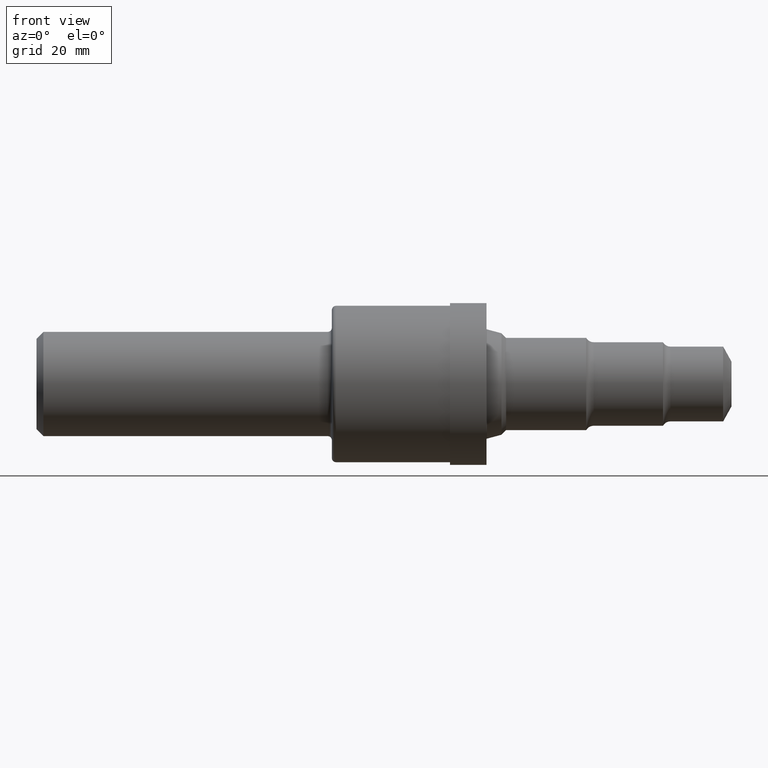
[diagram: clean part render]
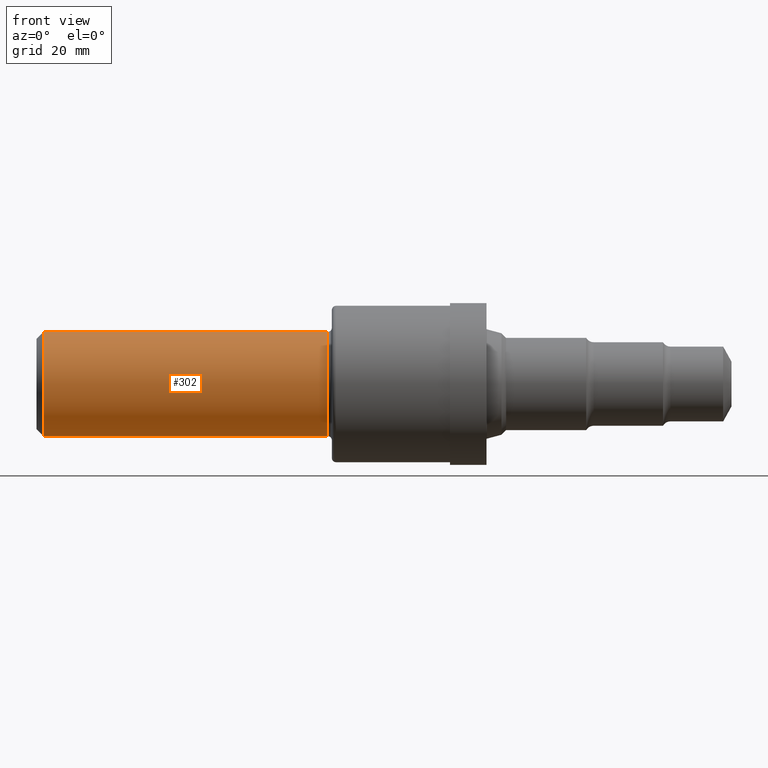
[diagram: same view with one face highlighted and labeled with its STEP entity id]
A machine part, front view. The second image highlights one B-rep face of the part: STEP entity #302.
In plain terms, the highlighted cylindrical surface (partial cylindrical patch) has radius 9.5212 mm, axis along (-1, -0, -0).
Its self-contained STEP definition (entity closure, byte-faithful):
#25 = ORIENTED_EDGE ( 'NONE', *, *, #118, .F. ) ;
#49 = CIRCLE ( 'NONE', #79, 0.3748500000000000165 ) ;
#78 = CIRCLE ( 'NONE', #111, 0.3748500000000005161 ) ;
#79 = AXIS2_PLACEMENT_3D ( 'NONE', #910, #527, #854 ) ;
#102 = DIRECTION ( 'NONE',  ( -1.000000000000000000, -0.0000000000000000000, -0.0000000000000000000 ) ) ;
#111 = AXIS2_PLACEMENT_3D ( 'NONE', #570, #718, #665 ) ;
#118 = EDGE_CURVE ( 'NONE', #606, #169, #563, .T. ) ;
#144 = ORIENTED_EDGE ( 'NONE', *, *, #242, .F. ) ;
#169 = VERTEX_POINT ( 'NONE', #191 ) ;
#191 = CARTESIAN_POINT ( 'NONE',  ( 0.05000000000000000278, 0.0000000000000000000, -0.3748500000000000165 ) ) ;
#197 = AXIS2_PLACEMENT_3D ( 'NONE', #916, #102, #438 ) ;
#203 = VECTOR ( 'NONE', #422, 39.37007874015748143 ) ;
#210 = ORIENTED_EDGE ( 'NONE', *, *, #806, .T. ) ;
#242 = EDGE_CURVE ( 'NONE', #169, #276, #49, .T. ) ;
#259 = EDGE_CURVE ( 'NONE', #851, #276, #693, .T. ) ;
#276 = VERTEX_POINT ( 'NONE', #694 ) ;
#302 = ADVANCED_FACE ( 'NONE', ( #865 ), #434, .T. ) ;
#352 = CARTESIAN_POINT ( 'NONE',  ( 0.0000000000000000000, 4.590588526603856213E-17, -0.3748500000000002386 ) ) ;
#422 = DIRECTION ( 'NONE',  ( -1.000000000000000000, -0.0000000000000000000, -0.0000000000000000000 ) ) ;
#434 = CYLINDRICAL_SURFACE ( 'NONE', #197, 0.3748500000000002386 ) ;
#438 = DIRECTION ( 'NONE',  ( 0.0000000000000000000, 0.0000000000000000000, 1.000000000000000000 ) ) ;
#480 = VECTOR ( 'NONE', #537, 39.37007874015748143 ) ;
#483 = CARTESIAN_POINT ( 'NONE',  ( 2.094999999999999751, 4.590588526603859294E-17, -0.3748500000000005161 ) ) ;
#527 = DIRECTION ( 'NONE',  ( -1.000000000000000000, -0.0000000000000000000, -0.0000000000000000000 ) ) ;
#537 = DIRECTION ( 'NONE',  ( -1.000000000000000000, -0.0000000000000000000, -0.0000000000000000000 ) ) ;
#563 = LINE ( 'NONE', #352, #203 ) ;
#570 = CARTESIAN_POINT ( 'NONE',  ( 2.094999999999999751, 0.0000000000000000000, 0.0000000000000000000 ) ) ;
#585 = EDGE_LOOP ( 'NONE', ( #25, #210, #642, #144 ) ) ;
#601 = CARTESIAN_POINT ( 'NONE',  ( 2.094999999999999751, 0.0000000000000000000, 0.3748500000000005161 ) ) ;
#606 = VERTEX_POINT ( 'NONE', #483 ) ;
#642 = ORIENTED_EDGE ( 'NONE', *, *, #259, .T. ) ;
#665 = DIRECTION ( 'NONE',  ( 0.0000000000000000000, 0.0000000000000000000, 1.000000000000000000 ) ) ;
#693 = LINE ( 'NONE', #921, #480 ) ;
#694 = CARTESIAN_POINT ( 'NONE',  ( 0.05000000000000000278, 4.590588526603853748E-17, 0.3748500000000000165 ) ) ;
#718 = DIRECTION ( 'NONE',  ( -1.000000000000000000, -0.0000000000000000000, -0.0000000000000000000 ) ) ;
#806 = EDGE_CURVE ( 'NONE', #606, #851, #78, .T. ) ;
#851 = VERTEX_POINT ( 'NONE', #601 ) ;
#854 = DIRECTION ( 'NONE',  ( 0.0000000000000000000, 0.0000000000000000000, 1.000000000000000000 ) ) ;
#865 = FACE_OUTER_BOUND ( 'NONE', #585, .T. ) ;
#910 = CARTESIAN_POINT ( 'NONE',  ( 0.05000000000000000278, 0.0000000000000000000, 0.0000000000000000000 ) ) ;
#916 = CARTESIAN_POINT ( 'NONE',  ( 0.0000000000000000000, 0.0000000000000000000, 0.0000000000000000000 ) ) ;
#921 = CARTESIAN_POINT ( 'NONE',  ( 0.0000000000000000000, 0.0000000000000000000, 0.3748500000000002386 ) ) ;